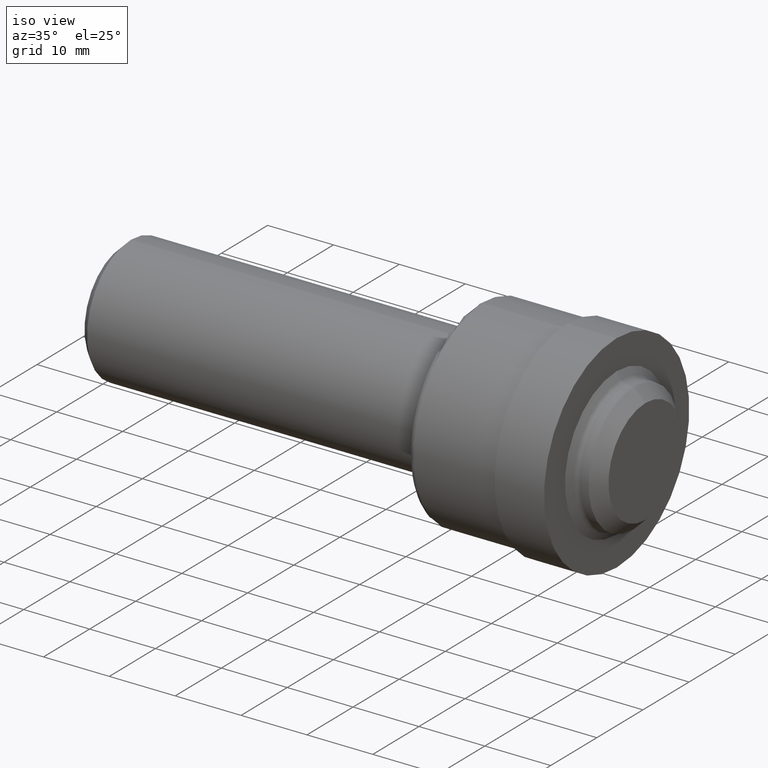
[diagram: clean part render]
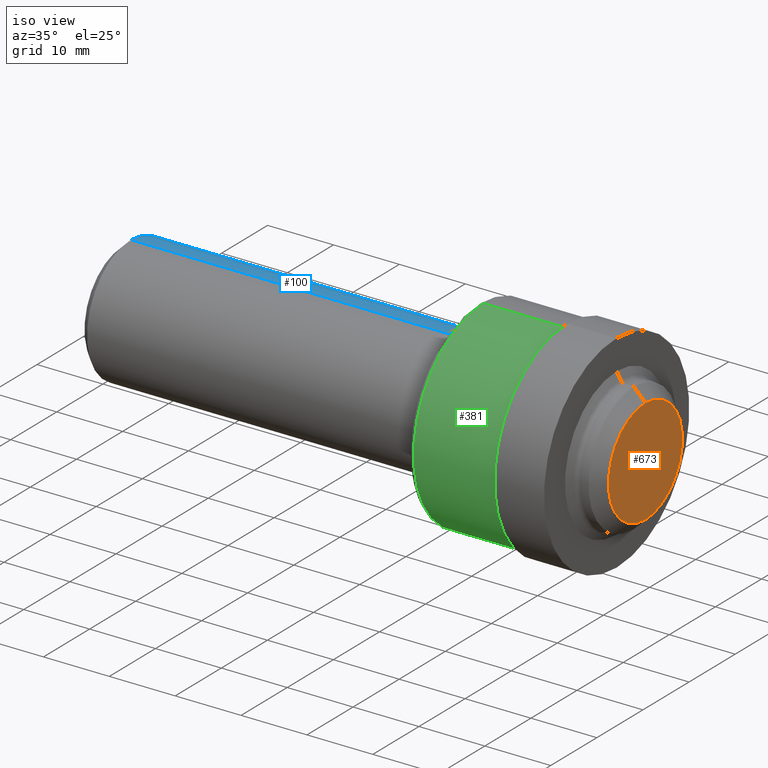
[diagram: same view with three faces highlighted in distinct colors, each labeled with its STEP entity id]
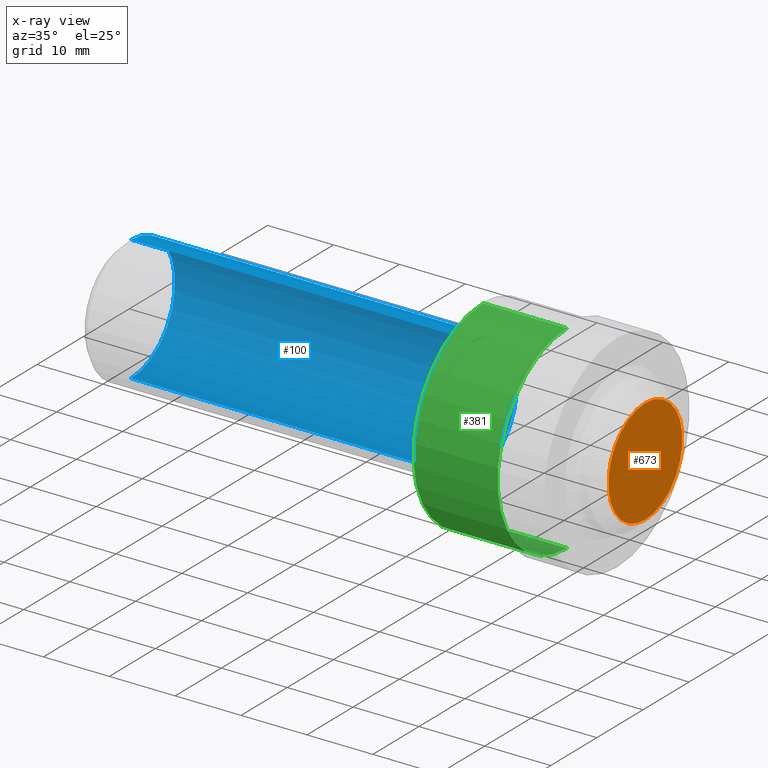
[diagram: x-ray of the same camera — body ghosted, the three highlighted faces saturated]
A machine part, iso view with three faces highlighted in distinct colors.
The next image is the same camera in x-ray (body ghosted, the three faces saturated) — at least one of them is partly hidden behind the body in this view.
Their STEP definitions:

[orange] entity #673 — the highlighted planar face has unit normal (-1, 0, -0).
#40 = DIRECTION ( 'NONE',  ( 0.000000000000000000, 0.000000000000000000, 1.000000000000000000 ) ) ;
#56 = VERTEX_POINT ( 'NONE', #446 ) ;
#71 = DIRECTION ( 'NONE',  ( -0.000000000000000000, 0.000000000000000000, 1.000000000000000000 ) ) ;
#133 = DIRECTION ( 'NONE',  ( -1.000000000000000000, 0.000000000000000000, -0.000000000000000000 ) ) ;
#181 = EDGE_CURVE ( 'NONE', #56, #198, #318, .T. ) ;
#195 = CIRCLE ( 'NONE', #595, 0.3155999999999998806 ) ;
#198 = VERTEX_POINT ( 'NONE', #680 ) ;
#200 = PLANE ( 'NONE',  #369 ) ;
#201 = EDGE_LOOP ( 'NONE', ( #473, #352 ) ) ;
#246 = AXIS2_PLACEMENT_3D ( 'NONE', #320, #415, #40 ) ;
#317 = DIRECTION ( 'NONE',  ( 0.000000000000000000, 0.000000000000000000, 1.000000000000000000 ) ) ;
#318 = CIRCLE ( 'NONE', #246, 0.3155999999999998806 ) ;
#320 = CARTESIAN_POINT ( 'NONE',  ( 3.125000000000000000, 0.000000000000000000, 0.000000000000000000 ) ) ;
#352 = ORIENTED_EDGE ( 'NONE', *, *, #181, .F. ) ;
#353 = FACE_OUTER_BOUND ( 'NONE', #201, .T. ) ;
#369 = AXIS2_PLACEMENT_3D ( 'NONE', #669, #133, #71 ) ;
#415 = DIRECTION ( 'NONE',  ( -1.000000000000000000, -0.000000000000000000, -0.000000000000000000 ) ) ;
#446 = CARTESIAN_POINT ( 'NONE',  ( 3.125000000000000000, 4.293611677810619095E-17, -0.3155999999999998806 ) ) ;
#458 = EDGE_CURVE ( 'NONE', #198, #56, #195, .T. ) ;
#473 = ORIENTED_EDGE ( 'NONE', *, *, #458, .F. ) ;
#524 = DIRECTION ( 'NONE',  ( -1.000000000000000000, -0.000000000000000000, -0.000000000000000000 ) ) ;
#595 = AXIS2_PLACEMENT_3D ( 'NONE', #624, #524, #317 ) ;
#624 = CARTESIAN_POINT ( 'NONE',  ( 3.125000000000000000, 0.000000000000000000, 0.000000000000000000 ) ) ;
#669 = CARTESIAN_POINT ( 'NONE',  ( 3.125000000000000000, 0.3155999999999998806, 0.000000000000000000 ) ) ;
#673 = ADVANCED_FACE ( 'NONE', ( #353 ), #200, .F. ) ;
#680 = CARTESIAN_POINT ( 'NONE',  ( 3.125000000000000000, 0.000000000000000000, 0.3155999999999998806 ) ) ;

[blue] entity #100 — the highlighted cylindrical surface (partial cylindrical patch) has radius 9.5212 mm, axis along (-1, -0, -0).
#23 = VERTEX_POINT ( 'NONE', #107 ) ;
#28 = AXIS2_PLACEMENT_3D ( 'NONE', #51, #494, #383 ) ;
#51 = CARTESIAN_POINT ( 'NONE',  ( 2.094999999999999751, 0.000000000000000000, 0.000000000000000000 ) ) ;
#72 = EDGE_CURVE ( 'NONE', #148, #23, #668, .T. ) ;
#81 = VECTOR ( 'NONE', #116, 39.37007874015748143 ) ;
#100 = ADVANCED_FACE ( 'NONE', ( #658 ), #592, .T. ) ;
#102 = VERTEX_POINT ( 'NONE', #336 ) ;
#107 = CARTESIAN_POINT ( 'NONE',  ( 2.094999999999999751, 4.774285546475956938E-17, -0.3748500000000000165 ) ) ;
#116 = DIRECTION ( 'NONE',  ( -1.000000000000000000, -0.000000000000000000, -0.000000000000000000 ) ) ;
#117 = CARTESIAN_POINT ( 'NONE',  ( 0.000000000000000000, 0.000000000000000000, 0.000000000000000000 ) ) ;
#126 = CARTESIAN_POINT ( 'NONE',  ( 0.05000000000000000278, 0.000000000000000000, 0.3748500000000000165 ) ) ;
#144 = VERTEX_POINT ( 'NONE', #126 ) ;
#148 = VERTEX_POINT ( 'NONE', #345 ) ;
#162 = DIRECTION ( 'NONE',  ( -1.000000000000000000, -0.000000000000000000, -0.000000000000000000 ) ) ;
#168 = LINE ( 'NONE', #380, #464 ) ;
#281 = DIRECTION ( 'NONE',  ( 0.000000000000000000, 0.000000000000000000, 1.000000000000000000 ) ) ;
#336 = CARTESIAN_POINT ( 'NONE',  ( 0.05000000000000000278, 4.590588526603853748E-17, -0.3748500000000000165 ) ) ;
#345 = CARTESIAN_POINT ( 'NONE',  ( 2.094999999999999751, 0.000000000000000000, 0.3748500000000000165 ) ) ;
#378 = CARTESIAN_POINT ( 'NONE',  ( 0.000000000000000000, 4.590588526603853748E-17, -0.3748500000000000165 ) ) ;
#380 = CARTESIAN_POINT ( 'NONE',  ( 0.000000000000000000, 0.000000000000000000, 0.3748500000000000165 ) ) ;
#383 = DIRECTION ( 'NONE',  ( 0.000000000000000000, 0.000000000000000000, 1.000000000000000000 ) ) ;
#384 = AXIS2_PLACEMENT_3D ( 'NONE', #117, #438, #281 ) ;
#405 = AXIS2_PLACEMENT_3D ( 'NONE', #689, #162, #425 ) ;
#408 = EDGE_LOOP ( 'NONE', ( #662, #560, #646, #410 ) ) ;
#410 = ORIENTED_EDGE ( 'NONE', *, *, #420, .F. ) ;
#420 = EDGE_CURVE ( 'NONE', #148, #144, #168, .T. ) ;
#425 = DIRECTION ( 'NONE',  ( 0.000000000000000000, 0.000000000000000000, 1.000000000000000000 ) ) ;
#438 = DIRECTION ( 'NONE',  ( -1.000000000000000000, -0.000000000000000000, -0.000000000000000000 ) ) ;
#464 = VECTOR ( 'NONE', #488, 39.37007874015748143 ) ;
#488 = DIRECTION ( 'NONE',  ( -1.000000000000000000, -0.000000000000000000, -0.000000000000000000 ) ) ;
#494 = DIRECTION ( 'NONE',  ( -1.000000000000000000, -0.000000000000000000, -0.000000000000000000 ) ) ;
#504 = EDGE_CURVE ( 'NONE', #144, #102, #628, .T. ) ;
#537 = LINE ( 'NONE', #378, #81 ) ;
#560 = ORIENTED_EDGE ( 'NONE', *, *, #652, .T. ) ;
#592 = CYLINDRICAL_SURFACE ( 'NONE', #384, 0.3748500000000000165 ) ;
#628 = CIRCLE ( 'NONE', #405, 0.3748500000000000165 ) ;
#646 = ORIENTED_EDGE ( 'NONE', *, *, #504, .F. ) ;
#652 = EDGE_CURVE ( 'NONE', #23, #102, #537, .T. ) ;
#658 = FACE_OUTER_BOUND ( 'NONE', #408, .T. ) ;
#662 = ORIENTED_EDGE ( 'NONE', *, *, #72, .T. ) ;
#668 = CIRCLE ( 'NONE', #28, 0.3748500000000000165 ) ;
#689 = CARTESIAN_POINT ( 'NONE',  ( 0.05000000000000000278, 0.000000000000000000, 0.000000000000000000 ) ) ;

[green] entity #381 — the highlighted cylindrical surface (partial cylindrical patch) has radius 15.0876 mm, axis along (-1, -0, -0).
#26 = DIRECTION ( 'NONE',  ( 0.000000000000000000, 0.000000000000000000, 1.000000000000000000 ) ) ;
#53 = FACE_OUTER_BOUND ( 'NONE', #454, .T. ) ;
#103 = CARTESIAN_POINT ( 'NONE',  ( 2.154999999999999805, 0.000000000000000000, 0.5939999999999999725 ) ) ;
#120 = CARTESIAN_POINT ( 'NONE',  ( 2.154999999999999805, 7.274401986935277967E-17, -0.5939999999999999725 ) ) ;
#122 = DIRECTION ( 'NONE',  ( -1.000000000000000000, -0.000000000000000000, -0.000000000000000000 ) ) ;
#172 = CARTESIAN_POINT ( 'NONE',  ( 0.000000000000000000, 0.000000000000000000, 0.000000000000000000 ) ) ;
#184 = CYLINDRICAL_SURFACE ( 'NONE', #615, 0.5939999999999999725 ) ;
#191 = EDGE_CURVE ( 'NONE', #667, #400, #308, .T. ) ;
#210 = CARTESIAN_POINT ( 'NONE',  ( 0.000000000000000000, 7.274401986935277967E-17, -0.5939999999999999725 ) ) ;
#215 = LINE ( 'NONE', #210, #648 ) ;
#220 = DIRECTION ( 'NONE',  ( 0.000000000000000000, 0.000000000000000000, 1.000000000000000000 ) ) ;
#223 = DIRECTION ( 'NONE',  ( -1.000000000000000000, -0.000000000000000000, -0.000000000000000000 ) ) ;
#224 = EDGE_CURVE ( 'NONE', #290, #388, #215, .T. ) ;
#225 = CARTESIAN_POINT ( 'NONE',  ( 2.154999999999999805, 0.000000000000000000, 0.000000000000000000 ) ) ;
#229 = DIRECTION ( 'NONE',  ( -1.000000000000000000, -0.000000000000000000, -0.000000000000000000 ) ) ;
#237 = CIRCLE ( 'NONE', #409, 0.5939999999999999725 ) ;
#247 = ORIENTED_EDGE ( 'NONE', *, *, #224, .F. ) ;
#266 = DIRECTION ( 'NONE',  ( -1.000000000000000000, -0.000000000000000000, -0.000000000000000000 ) ) ;
#290 = VERTEX_POINT ( 'NONE', #545 ) ;
#308 = LINE ( 'NONE', #314, #622 ) ;
#314 = CARTESIAN_POINT ( 'NONE',  ( 0.000000000000000000, 0.000000000000000000, 0.5939999999999999725 ) ) ;
#368 = DIRECTION ( 'NONE',  ( -1.000000000000000000, -0.000000000000000000, -0.000000000000000000 ) ) ;
#381 = ADVANCED_FACE ( 'NONE', ( #53 ), #184, .T. ) ;
#388 = VERTEX_POINT ( 'NONE', #120 ) ;
#395 = AXIS2_PLACEMENT_3D ( 'NONE', #225, #122, #26 ) ;
#400 = VERTEX_POINT ( 'NONE', #103 ) ;
#401 = EDGE_CURVE ( 'NONE', #290, #667, #237, .T. ) ;
#409 = AXIS2_PLACEMENT_3D ( 'NONE', #485, #223, #220 ) ;
#414 = ORIENTED_EDGE ( 'NONE', *, *, #401, .T. ) ;
#419 = ORIENTED_EDGE ( 'NONE', *, *, #671, .F. ) ;
#441 = CARTESIAN_POINT ( 'NONE',  ( 2.657999999999999918, 0.000000000000000000, 0.5939999999999999725 ) ) ;
#454 = EDGE_LOOP ( 'NONE', ( #247, #414, #516, #419 ) ) ;
#485 = CARTESIAN_POINT ( 'NONE',  ( 2.657999999999999918, 0.000000000000000000, 0.000000000000000000 ) ) ;
#516 = ORIENTED_EDGE ( 'NONE', *, *, #191, .T. ) ;
#545 = CARTESIAN_POINT ( 'NONE',  ( 2.657999999999999918, 7.274401986935277967E-17, -0.5939999999999999725 ) ) ;
#573 = CIRCLE ( 'NONE', #395, 0.5939999999999999725 ) ;
#615 = AXIS2_PLACEMENT_3D ( 'NONE', #172, #229, #647 ) ;
#622 = VECTOR ( 'NONE', #368, 39.37007874015748143 ) ;
#647 = DIRECTION ( 'NONE',  ( 0.000000000000000000, 0.000000000000000000, 1.000000000000000000 ) ) ;
#648 = VECTOR ( 'NONE', #266, 39.37007874015748143 ) ;
#667 = VERTEX_POINT ( 'NONE', #441 ) ;
#671 = EDGE_CURVE ( 'NONE', #388, #400, #573, .T. ) ;